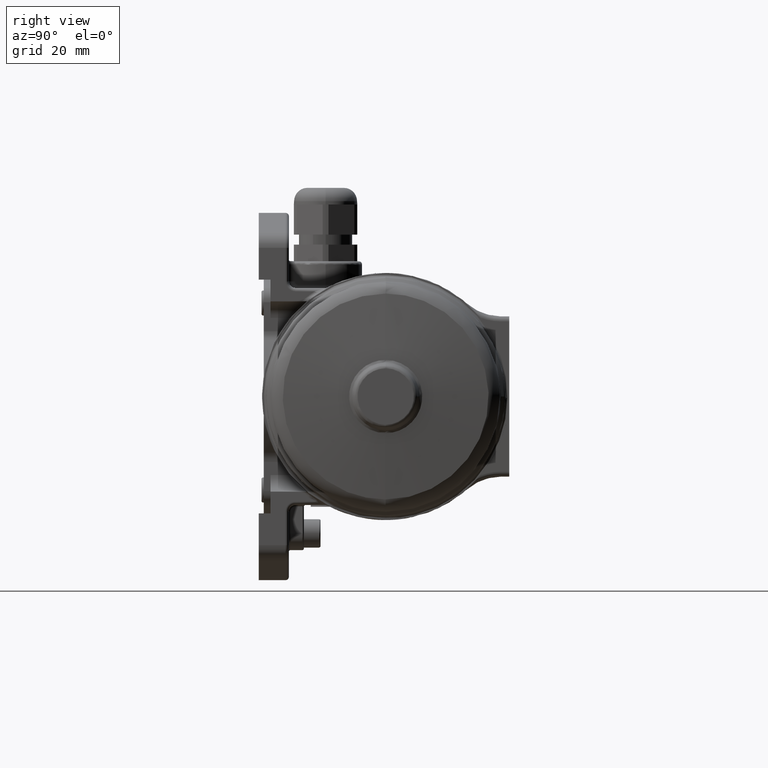
[diagram: clean part render]
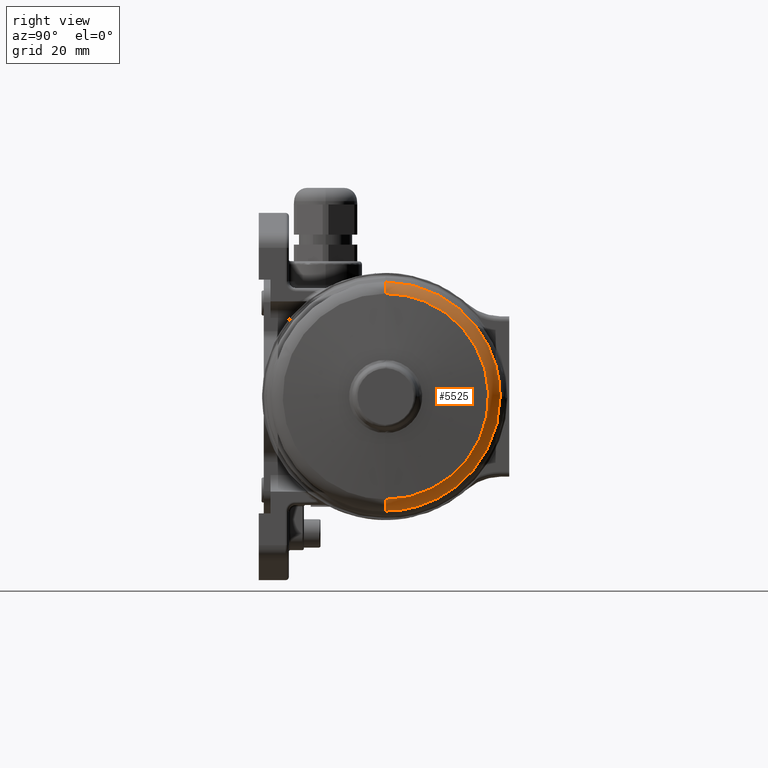
[diagram: same view with one face highlighted and labeled with its STEP entity id]
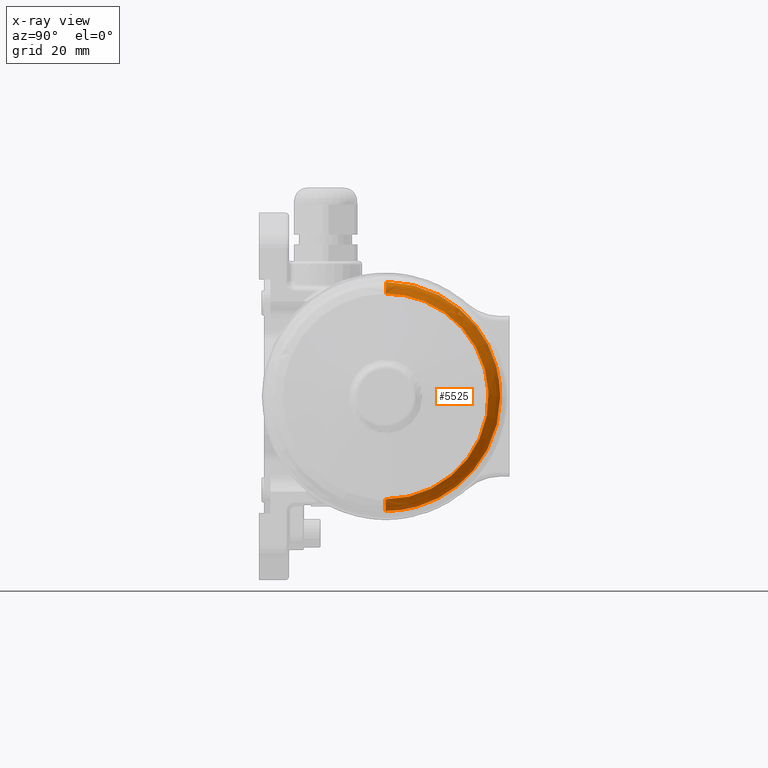
[diagram: x-ray of the same camera — body ghosted, the highlighted face saturated]
A machine part, right view. The second image highlights one B-rep face of the part: STEP entity #5525.
The next image is the same camera in x-ray: the body ghosted, the highlighted face saturated — about 0% of this face is hidden behind the body in this view.
In plain terms, the highlighted face is a freeform B-spline surface patch.
Its self-contained STEP definition (entity closure, byte-faithful):
#1525 = CARTESIAN_POINT ( 'NONE',  ( 76.43075740382001000, 34.30000024409823600, -7.554320217214872700E-012 ) ) ;
#1855 = CIRCLE ( 'NONE', #1875, 34.30000000000330100 ) ;
#1870 = CARTESIAN_POINT ( 'NONE',  ( 76.43075740382009500, -0.01803685388854630100, -34.29999525761084600 ) ) ;
#1875 = AXIS2_PLACEMENT_3D ( 'NONE', #1936, #1935, #1934 ) ;
#1878 = CARTESIAN_POINT ( 'NONE',  ( 76.43075740382009500, -7.515426538180559100E-015, -34.29999999390215500 ) ) ;
#1904 = CARTESIAN_POINT ( 'NONE',  ( 76.43075740381995300, 27.27219155744948900, -20.92264986176789400 ) ) ;
#1905 = CARTESIAN_POINT ( 'NONE',  ( 76.43075740381993900, 29.76662384650970600, -17.18946812338165100 ) ) ;
#1906 = CARTESIAN_POINT ( 'NONE',  ( 76.43075740381992500, 30.82997054284664200, -15.20008637842437000 ) ) ;
#1907 = CARTESIAN_POINT ( 'NONE',  ( 76.43075740381995300, 32.54816538743298100, -11.05199708182483500 ) ) ;
#1908 = CARTESIAN_POINT ( 'NONE',  ( 76.43075740381995300, 33.20297104992893400, -8.893392099864705400 ) ) ;
#1909 = CARTESIAN_POINT ( 'NONE',  ( 76.43075740381993900, 34.07889918573866300, -4.489803990444897000 ) ) ;
#1910 = CARTESIAN_POINT ( 'NONE',  ( 76.43075740381995300, 34.30000000000317300, -2.244929750378994400 ) ) ;
#1914 = CARTESIAN_POINT ( 'NONE',  ( 76.43075740382001000, 34.30000024409823600, -7.554320217214872700E-012 ) ) ;
#1915 = B_SPLINE_CURVE_WITH_KNOTS ( 'NONE', 3,
 ( #1914, #1910, #1909, #1908, #1907, #1906, #1905, #1904, #1972, #1971, #1970, #1969, #1968, #1967, #1966, #1965, #1964, #1963 ),
 .UNSPECIFIED., .F., .F.,
 ( 4, 2, 2, 2, 2, 2, 2, 2, 4 ),
 ( 0.4999162934352366900, 0.5624267567558320900, 0.6249372200764273800, 0.6874476833970228900, 0.7499581467176182900, 0.8124686100382136900, 0.8749790733588092000, 0.9374895366794046000, 1.000000000000000000 ),
 .UNSPECIFIED. ) ;
#1934 = DIRECTION ( 'NONE',  ( 0.0000000000000000000, -1.179611963664229600E-016, -1.000000000000000000 ) ) ;
#1935 = DIRECTION ( 'NONE',  ( -1.000000000000000000, -5.766495800001249700E-022, -1.037842000000000100E-018 ) ) ;
#1936 = CARTESIAN_POINT ( 'NONE',  ( 76.43075740382009500, 8.944842204785980400E-020, 7.429153428379859200E-020 ) ) ;
#1963 = CARTESIAN_POINT ( 'NONE',  ( 76.43075740382009500, -7.515426538180559100E-015, -34.29999999390215500 ) ) ;
#1964 = CARTESIAN_POINT ( 'NONE',  ( 76.43075740381995300, 2.244929750377816700, -34.30000000000325100 ) ) ;
#1965 = CARTESIAN_POINT ( 'NONE',  ( 76.43075740381992500, 4.489803990443721900, -34.07889918573881300 ) ) ;
#1966 = CARTESIAN_POINT ( 'NONE',  ( 76.43075740381993900, 8.893392099863564900, -33.20297104992924600 ) ) ;
#1967 = CARTESIAN_POINT ( 'NONE',  ( 76.43075740381995300, 11.05199708182372300, -32.54816538743334300 ) ) ;
#1968 = CARTESIAN_POINT ( 'NONE',  ( 76.43075740381992500, 15.20008637842332200, -30.82997054284716800 ) ) ;
#1969 = CARTESIAN_POINT ( 'NONE',  ( 76.43075740381996800, 17.18946812338059600, -29.76662384651031700 ) ) ;
#1970 = CARTESIAN_POINT ( 'NONE',  ( 76.43075740381999600, 20.92264986176692800, -27.27219155745021700 ) ) ;
#1971 = CARTESIAN_POINT ( 'NONE',  ( 76.43075740381992500, 22.66635754492081000, -25.84116764448088000 ) ) ;
#1972 = CARTESIAN_POINT ( 'NONE',  ( 76.43075740381993900, 25.84116764448010500, -22.66635754492169500 ) ) ;
#5330 = VERTEX_POINT ( 'NONE', #12017 ) ;
#5394 = EDGE_CURVE ( 'NONE', #5330, #13469, #14842, .T. ) ;
#5413 = VERTEX_POINT ( 'NONE', #14920 ) ;
#5426 = VERTEX_POINT ( 'NONE', #14965 ) ;
#5457 = ORIENTED_EDGE ( 'NONE', *, *, #5461, .T. ) ;
#5461 = EDGE_CURVE ( 'NONE', #5426, #13584, #15605, .T. ) ;
#5462 = EDGE_CURVE ( 'NONE', #5330, #5413, #15655, .T. ) ;
#5471 = EDGE_CURVE ( 'NONE', #5490, #5413, #15695, .T. ) ;
#5476 = EDGE_CURVE ( 'NONE', #5426, #5490, #15724, .T. ) ;
#5490 = VERTEX_POINT ( 'NONE', #16072 ) ;
#5525 = ADVANCED_FACE ( 'NONE', ( #16141 ), #16227, .F. ) ;
#5527 = EDGE_LOOP ( 'NONE', ( #5528, #5532, #5533, #5531, #5536, #5529, #5457 ) ) ;
#5528 = ORIENTED_EDGE ( 'NONE', *, *, #13590, .F. ) ;
#5529 = ORIENTED_EDGE ( 'NONE', *, *, #5476, .F. ) ;
#5531 = ORIENTED_EDGE ( 'NONE', *, *, #5462, .T. ) ;
#5532 = ORIENTED_EDGE ( 'NONE', *, *, #13591, .F. ) ;
#5533 = ORIENTED_EDGE ( 'NONE', *, *, #5394, .F. ) ;
#5536 = ORIENTED_EDGE ( 'NONE', *, *, #5471, .F. ) ;
#12017 = CARTESIAN_POINT ( 'NONE',  ( 76.43075740382009500, 0.01803685388854980200, 34.29999525761084600 ) ) ;
#13469 = VERTEX_POINT ( 'NONE', #1525 ) ;
#13584 = VERTEX_POINT ( 'NONE', #1870 ) ;
#13585 = VERTEX_POINT ( 'NONE', #1878 ) ;
#13590 = EDGE_CURVE ( 'NONE', #13585, #13584, #1855, .T. ) ;
#13591 = EDGE_CURVE ( 'NONE', #13469, #13585, #1915, .T. ) ;
#14816 = CARTESIAN_POINT ( 'NONE',  ( 76.43075740382001000, 34.30000024409823600, -7.554320217214872700E-012 ) ) ;
#14817 = CARTESIAN_POINT ( 'NONE',  ( 76.43075740381993900, 34.30000000000331500, 2.244178214763529400 ) ) ;
#14818 = CARTESIAN_POINT ( 'NONE',  ( 76.43075740381995300, 34.07904766693912500, 4.488301012001903300 ) ) ;
#14819 = CARTESIAN_POINT ( 'NONE',  ( 76.43075740381992500, 33.20370212732529300, 8.890472478991243900 ) ) ;
#14820 = CARTESIAN_POINT ( 'NONE',  ( 76.43075740381998200, 32.54933053647626200, 11.04841244193302400 ) ) ;
#14821 = CARTESIAN_POINT ( 'NONE',  ( 76.43075740381998200, 30.83225604885636900, 15.19533885102950100 ) ) ;
#14822 = CARTESIAN_POINT ( 'NONE',  ( 76.43075740381995300, 29.76959555336179600, 17.18422289337254200 ) ) ;
#14823 = CARTESIAN_POINT ( 'NONE',  ( 76.43075740381995300, 27.27673429622249700, 20.91664652837846500 ) ) ;
#14824 = CARTESIAN_POINT ( 'NONE',  ( 76.43075740381996800, 25.84659509305978300, 22.66009395292228100 ) ) ;
#14825 = CARTESIAN_POINT ( 'NONE',  ( 76.43075740381995300, 22.67368240179041500, 25.83467557765312600 ) ) ;
#14826 = CARTESIAN_POINT ( 'NONE',  ( 76.43075740381996800, 20.93098726529204300, 27.26573138501934000 ) ) ;
#14827 = CARTESIAN_POINT ( 'NONE',  ( 76.43075740381996800, 17.19987503188610100, 29.76055501410126100 ) ) ;
#14828 = CARTESIAN_POINT ( 'NONE',  ( 76.43075740381993900, 15.21155007071393200, 30.82426122887634200 ) ) ;
#14829 = CARTESIAN_POINT ( 'NONE',  ( 76.43075740381993900, 11.06552716855631900, 32.54351616438809500 ) ) ;
#14830 = CARTESIAN_POINT ( 'NONE',  ( 76.43075740381995300, 8.907931609071473700, 33.19902243000466800 ) ) ;
#14839 = CARTESIAN_POINT ( 'NONE',  ( 76.43075740381992500, 4.506221056263629300, 34.07668275598335600 ) ) ;
#14840 = CARTESIAN_POINT ( 'NONE',  ( 76.43075740381995300, 2.262214758368067600, 34.29881514348372900 ) ) ;
#14841 = CARTESIAN_POINT ( 'NONE',  ( 76.43075740382009500, 0.01803685388854980200, 34.29999525761084600 ) ) ;
#14842 = B_SPLINE_CURVE_WITH_KNOTS ( 'NONE', 3,
 ( #14841, #14840, #14839, #14830, #14829, #14828, #14827, #14826, #14825, #14824, #14823, #14822, #14821, #14820, #14819, #14818, #14817, #14816 ),
 .UNSPECIFIED., .F., .F.,
 ( 4, 2, 2, 2, 2, 2, 2, 2, 4 ),
 ( 0.0000000000000000000, 0.06248953667940461400, 0.1249790733588092300, 0.1874686100382137700, 0.2499581467176183500, 0.3124476833970228900, 0.3749372200764274900, 0.4374267567558320400, 0.4999162934352366900 ),
 .UNSPECIFIED. ) ;
#14920 = CARTESIAN_POINT ( 'NONE',  ( 80.21629720906608400, 0.01621276101738970000, 30.83118760318850300 ) ) ;
#14965 = CARTESIAN_POINT ( 'NONE',  ( 80.21629720918949100, -0.01621276101662820100, -30.83118760177880100 ) ) ;
#15336 = CARTESIAN_POINT ( 'NONE',  ( 80.21629720906659600, 31.02983431266405000, -0.01614144394570060000 ) ) ;
#15352 = CARTESIAN_POINT ( 'NONE',  ( 80.21629720906659600, 25.68546071184199800, 17.14295015924729900 ) ) ;
#15353 = CARTESIAN_POINT ( 'NONE',  ( 80.21629720906659600, 27.24207039899755100, 14.54258287021332000 ) ) ;
#15354 = CARTESIAN_POINT ( 'NONE',  ( 80.21629720906659600, 28.96652833144240100, 10.89234608234363900 ) ) ;
#15355 = CARTESIAN_POINT ( 'NONE',  ( 80.21629720906659600, 30.43724570973289900, 6.036979373995180300 ) ) ;
#15602 = CARTESIAN_POINT ( 'NONE',  ( 80.17558706228931000, -0.01645745176789514800, -31.29650664576660200 ) ) ;
#15603 = CARTESIAN_POINT ( 'NONE',  ( 80.21629720918949100, -0.01621276101662820100, -30.83118760177880100 ) ) ;
#15605 = B_SPLINE_CURVE_WITH_KNOTS ( 'NONE', 3,
 ( #15603, #15602, #15661, #15660, #15659, #15658, #15657 ),
 .UNSPECIFIED., .F., .F.,
 ( 4, 1, 1, 1, 4 ),
 ( 0.0000000000000000000, 1.401289650940730000, 2.802579301881455100, 4.203868952822174900, 5.605158603762900400 ),
 .UNSPECIFIED. ) ;
#15647 = CARTESIAN_POINT ( 'NONE',  ( 80.21629720906608400, 0.01621276101738970000, 30.83118760318850300 ) ) ;
#15648 = CARTESIAN_POINT ( 'NONE',  ( 80.17558706228931000, 0.01645745176791594800, 31.29650664576660200 ) ) ;
#15649 = CARTESIAN_POINT ( 'NONE',  ( 79.91789415065071000, 0.01694354276061995100, 32.22088729703574500 ) ) ;
#15650 = CARTESIAN_POINT ( 'NONE',  ( 79.05723255256009500, 0.01754585954526950000, 33.36629009205675100 ) ) ;
#15651 = CARTESIAN_POINT ( 'NONE',  ( 77.84117660238170800, 0.01794422585208825200, 34.12384806303674600 ) ) ;
#15652 = CARTESIAN_POINT ( 'NONE',  ( 76.89785395413369400, 0.01803685388854980200, 34.29999525761084600 ) ) ;
#15653 = CARTESIAN_POINT ( 'NONE',  ( 76.43075740382009500, 0.01803685388854980200, 34.29999525761084600 ) ) ;
#15655 = B_SPLINE_CURVE_WITH_KNOTS ( 'NONE', 3,
 ( #15653, #15652, #15651, #15650, #15649, #15648, #15647 ),
 .UNSPECIFIED., .F., .F.,
 ( 4, 1, 1, 1, 4 ),
 ( 0.0000000000000000000, 1.401289650940726000, 2.802579301881445300, 4.203868952822170400, 5.605158603762900400 ),
 .UNSPECIFIED. ) ;
#15657 = CARTESIAN_POINT ( 'NONE',  ( 76.43075740382009500, -0.01803685388854630100, -34.29999525761084600 ) ) ;
#15658 = CARTESIAN_POINT ( 'NONE',  ( 76.89785395413369400, -0.01803685388853414800, -34.29999525761084600 ) ) ;
#15659 = CARTESIAN_POINT ( 'NONE',  ( 77.84117660238170800, -0.01794422585206914900, -34.12384806303674600 ) ) ;
#15660 = CARTESIAN_POINT ( 'NONE',  ( 79.05723255256009500, -0.01754585954525565000, -33.36629009205680100 ) ) ;
#15661 = CARTESIAN_POINT ( 'NONE',  ( 79.91789415065071000, -0.01694354276058870200, -32.22088729703569500 ) ) ;
#15663 = CARTESIAN_POINT ( 'NONE',  ( 80.21629720966171800, 8.008371734502393500, 29.84122849395561500 ) ) ;
#15664 = CARTESIAN_POINT ( 'NONE',  ( 80.21629720966170400, 9.948065350124704100, 29.25181928797067200 ) ) ;
#15665 = CARTESIAN_POINT ( 'NONE',  ( 80.21629720966170400, 13.67531741799465700, 27.70593130330645700 ) ) ;
#15666 = CARTESIAN_POINT ( 'NONE',  ( 80.21629720966170400, 15.46278376822514200, 26.74949072419058600 ) ) ;
#15667 = CARTESIAN_POINT ( 'NONE',  ( 80.21629720966171800, 18.81690367562681500, 24.50626597277984300 ) ) ;
#15668 = CARTESIAN_POINT ( 'NONE',  ( 80.21629720966170400, 20.38347435103856900, 23.21953723154269900 ) ) ;
#15669 = CARTESIAN_POINT ( 'NONE',  ( 80.21629720966171800, 23.23560815952518200, 20.36515281856366900 ) ) ;
#15670 = CARTESIAN_POINT ( 'NONE',  ( 80.21629720966170400, 24.52110081513508900, 18.79756767990014100 ) ) ;
#15671 = CARTESIAN_POINT ( 'NONE',  ( 80.21629720966171800, 26.76167919375048900, 15.44167939691883100 ) ) ;
#15672 = CARTESIAN_POINT ( 'NONE',  ( 80.21629720966170400, 27.71670955109126300, 13.65345917805782100 ) ) ;
#15673 = CARTESIAN_POINT ( 'NONE',  ( 80.21629720966170400, 29.25965705934619600, 9.924988898527640700 ) ) ;
#15674 = CARTESIAN_POINT ( 'NONE',  ( 80.21629720966170400, 29.84753608335740800, 7.984830969978165900 ) ) ;
#15675 = CARTESIAN_POINT ( 'NONE',  ( 80.21629720966171800, 30.63357789842384100, 4.027013907058624800 ) ) ;
#15676 = CARTESIAN_POINT ( 'NONE',  ( 80.21629720966171800, 30.83172126604446800, 2.009452572066862300 ) ) ;
#15677 = CARTESIAN_POINT ( 'NONE',  ( 80.21629720966171800, 30.83066032089693900, -2.025665333641152100 ) ) ;
#15678 = CARTESIAN_POINT ( 'NONE',  ( 80.21629720966171800, 30.63145603434521300, -4.043122194841697800 ) ) ;
#15679 = CARTESIAN_POINT ( 'NONE',  ( 80.21629720966173200, 29.84333308690667900, -8.000525365898552000 ) ) ;
#15680 = CARTESIAN_POINT ( 'NONE',  ( 80.21629720966173200, 29.25443390088017300, -9.940373886603989500 ) ) ;
#15681 = CARTESIAN_POINT ( 'NONE',  ( 80.21629720966171800, 27.70952596824045200, -13.66803228273378300 ) ) ;
#15682 = CARTESIAN_POINT ( 'NONE',  ( 80.21629720966171800, 26.75355539697315900, -15.45575004610042700 ) ) ;
#15683 = CARTESIAN_POINT ( 'NONE',  ( 80.21629720966173200, 24.51121261483226700, -18.81045964395694300 ) ) ;
#15684 = CARTESIAN_POINT ( 'NONE',  ( 80.21629720966173200, 23.22489581322254900, -20.37736858211586400 ) ) ;
#15685 = CARTESIAN_POINT ( 'NONE',  ( 80.21629720966174700, 20.37126140448342300, -23.23025278934022400 ) ) ;
#15686 = CARTESIAN_POINT ( 'NONE',  ( 80.21629720966174700, 18.80401431189945400, -24.51615756239803500 ) ) ;
#15687 = CARTESIAN_POINT ( 'NONE',  ( 80.21629720966171800, 15.44871525550279600, -26.75761822025346600 ) ) ;
#15688 = CARTESIAN_POINT ( 'NONE',  ( 80.21629720966171800, 13.66074620258684300, -27.71311871758488000 ) ) ;
#15689 = CARTESIAN_POINT ( 'NONE',  ( 80.21629720966176100, 9.932681735894282900, -29.25704649139891700 ) ) ;
#15690 = CARTESIAN_POINT ( 'NONE',  ( 80.21629720966170400, 7.992678444209561300, -29.84543561675574400 ) ) ;
#15691 = CARTESIAN_POINT ( 'NONE',  ( 80.21629720966171800, 4.035068190424411200, -30.63251802521415700 ) ) ;
#15692 = CARTESIAN_POINT ( 'NONE',  ( 80.21629720966170400, 2.017559022591957500, -30.83119185916760300 ) ) ;
#15693 = CARTESIAN_POINT ( 'NONE',  ( 80.21629720906580000, -5.814960439109021300E-012, -30.83119186049519900 ) ) ;
#15695 = B_SPLINE_CURVE_WITH_KNOTS ( 'NONE', 3,
 ( #15693, #15692, #15691, #15690, #15689, #15688, #15687, #15686, #15685, #15684, #15683, #15682, #15681, #15680, #15679, #15678, #15677, #15676, #15675, #15674, #15673, #15672, #15671, #15670, #15669, #15668, #15667, #15666, #15665, #15664, #15663, #15728, #15727, #15726 ),
 .UNSPECIFIED., .F., .F.,
 ( 4, 2, 2, 2, 2, 2, 2, 2, 2, 2, 2, 2, 2, 2, 2, 2, 4 ),
 ( 0.0000000000000000000, 0.06250000000000008300, 0.1250000000000001400, 0.1875000000000001900, 0.2500000000000002200, 0.3125000000000002200, 0.3750000000000002800, 0.4375000000000002800, 0.5000000000000003300, 0.5625000000000003300, 0.6250000000000002200, 0.6875000000000002200, 0.7500000000000002200, 0.8125000000000002200, 0.8750000000000001100, 0.9375000000000001100, 1.000000000000000000 ),
 .UNSPECIFIED. ) ;
#15705 = DIRECTION ( 'NONE',  ( 1.000000000000000000, -2.250607748826409800E-016, 2.250608388436215200E-016 ) ) ;
#15722 = CARTESIAN_POINT ( 'NONE',  ( 80.21629720906530300, -3.469357261404724700E-015, 7.429153428420779200E-020 ) ) ;
#15724 = CIRCLE ( 'NONE', #15767, 30.83119186598505100 ) ;
#15726 = CARTESIAN_POINT ( 'NONE',  ( 80.21629720906608400, 0.01621276101738970000, 30.83118760318850300 ) ) ;
#15727 = CARTESIAN_POINT ( 'NONE',  ( 80.21629720966170400, 2.033771504653746600, 30.83012665126926400 ) ) ;
#15728 = CARTESIAN_POINT ( 'NONE',  ( 80.21629720966170400, 4.051175919753416300, 30.63039192589045700 ) ) ;
#15766 = DIRECTION ( 'NONE',  ( 0.0000000000000000000, 1.179611963664230100E-016, 1.000000000000000000 ) ) ;
#15767 = AXIS2_PLACEMENT_3D ( 'NONE', #15722, #15705, #15766 ) ;
#15773 = CARTESIAN_POINT ( 'NONE',  ( 80.21629720906659600, 23.88130433760764900, 19.57807446992229900 ) ) ;
#15796 = CARTESIAN_POINT ( 'NONE',  ( 80.21629720906659600, 17.25313807424964800, 25.79176778924889700 ) ) ;
#15797 = CARTESIAN_POINT ( 'NONE',  ( 80.21629720906659600, 21.17188518327694900, 22.57103325955035100 ) ) ;
#16068 = CARTESIAN_POINT ( 'NONE',  ( 80.21629720906659600, 0.01621276101738970000, 30.83118760318330200 ) ) ;
#16072 = CARTESIAN_POINT ( 'NONE',  ( 80.21629720906580000, -5.814960439109021300E-012, -30.83119186049519900 ) ) ;
#16103 = CARTESIAN_POINT ( 'NONE',  ( 80.21629720906659600, 12.78041950411505900, 28.18440506354179900 ) ) ;
#16118 = CARTESIAN_POINT ( 'NONE',  ( 80.21629720906659600, 8.979908231644769100, 29.54622793671395100 ) ) ;
#16122 = CARTESIAN_POINT ( 'NONE',  ( 80.21629720906659600, 3.043202804694269800, 30.73045548907444800 ) ) ;
#16123 = CARTESIAN_POINT ( 'NONE',  ( 80.21629720906659600, 1.024755875977744000, 30.83065725486489900 ) ) ;
#16130 = CARTESIAN_POINT ( 'NONE',  ( 80.21629720906659600, 6.040373573423100800, 30.28424718223050100 ) ) ;
#16141 = FACE_OUTER_BOUND ( 'NONE', #5527, .T. ) ;
#16184 = CARTESIAN_POINT ( 'NONE',  ( 76.43075740382009500, 0.01803685388854980200, 34.29999525761084600 ) ) ;
#16185 = CARTESIAN_POINT ( 'NONE',  ( 76.43075740382009500, 1.140050851710174000, 34.29940523996254600 ) ) ;
#16186 = CARTESIAN_POINT ( 'NONE',  ( 76.43075740382009500, 3.385592637961954800, 34.18792980360725400 ) ) ;
#16187 = CARTESIAN_POINT ( 'NONE',  ( 76.43075740382009500, 6.719974189421710000, 33.69151873421739700 ) ) ;
#16188 = CARTESIAN_POINT ( 'NONE',  ( 76.43075740382009500, 9.990235008897089500, 32.87046516511555400 ) ) ;
#16189 = CARTESIAN_POINT ( 'NONE',  ( 76.43075740382009500, 14.21834066282166000, 31.35542400962375400 ) ) ;
#16190 = CARTESIAN_POINT ( 'NONE',  ( 76.43075740382009500, 19.19428345551525100, 28.69359183443515000 ) ) ;
#16191 = CARTESIAN_POINT ( 'NONE',  ( 76.43075740382009500, 23.55392762444550000, 25.11049343042565200 ) ) ;
#16192 = CARTESIAN_POINT ( 'NONE',  ( 76.43075740382009500, 26.56818271382220300, 21.78079774656984900 ) ) ;
#16193 = CARTESIAN_POINT ( 'NONE',  ( 76.43075740382009500, 28.57532417968764800, 19.07169833130045000 ) ) ;
#16194 = CARTESIAN_POINT ( 'NONE',  ( 76.43075740382009500, 30.30706755508310100, 16.17876449982185200 ) ) ;
#16195 = CARTESIAN_POINT ( 'NONE',  ( 76.43075740382009500, 32.22554373141765200, 12.11784066761245900 ) ) ;
#16196 = CARTESIAN_POINT ( 'NONE',  ( 76.43075740382009500, 33.86173108008275500, 6.716198109635899800 ) ) ;
#16197 = CARTESIAN_POINT ( 'NONE',  ( 76.43075740382009500, 34.52099164869459700, -0.01795751295454305100 ) ) ;
#16198 = CARTESIAN_POINT ( 'NONE',  ( 76.43075740382009500, 33.85427387080395100, -6.752589181149099700 ) ) ;
#16199 = CARTESIAN_POINT ( 'NONE',  ( 76.43075740382009500, 31.88638277368190200, -13.22741016699503900 ) ) ;
#16200 = CARTESIAN_POINT ( 'NONE',  ( 76.43075740382009500, 28.69316210598274700, -19.19399292343484800 ) ) ;
#16201 = CARTESIAN_POINT ( 'NONE',  ( 76.43075740382009500, 24.39726692062924600, -24.42293886177749900 ) ) ;
#16202 = CARTESIAN_POINT ( 'NONE',  ( 76.43075740382009500, 19.16380176926350000, -28.71333096756855200 ) ) ;
#16203 = CARTESIAN_POINT ( 'NONE',  ( 76.43075740382009500, 13.19388157391017900, -31.90028425560414900 ) ) ;
#16204 = CARTESIAN_POINT ( 'NONE',  ( 76.43075740382009500, 6.716928145997579600, -33.86132794339090400 ) ) ;
#16205 = CARTESIAN_POINT ( 'NONE',  ( 76.43075740382009500, -0.01815312293878470300, -34.52109966402385100 ) ) ;
#16206 = CARTESIAN_POINT ( 'NONE',  ( 76.43075740382009500, -6.752536777573681100, -33.85424494617885200 ) ) ;
#16207 = CARTESIAN_POINT ( 'NONE',  ( 76.43075740382009500, -13.22742417131240000, -31.88639045685309600 ) ) ;
#16208 = CARTESIAN_POINT ( 'NONE',  ( 76.43075740382009500, -19.19398930974085000, -28.69316029792315000 ) ) ;
#16209 = CARTESIAN_POINT ( 'NONE',  ( 76.43075740382009500, -24.42293931223625200, -24.39726646969649700 ) ) ;
#16210 = CARTESIAN_POINT ( 'NONE',  ( 76.43075740382009500, -28.71333277942770200, -19.16380538105400100 ) ) ;
#16211 = CARTESIAN_POINT ( 'NONE',  ( 76.43075740382009500, -31.90027655770869700, -13.19386757768102000 ) ) ;
#16212 = CARTESIAN_POINT ( 'NONE',  ( 76.43075740382009500, -33.86135692311344800, -6.716980519123679500 ) ) ;
#16213 = CARTESIAN_POINT ( 'NONE',  ( 76.43075740382009500, -34.52099144302910400, 0.01834861921395640100 ) ) ;
#16214 = CARTESIAN_POINT ( 'NONE',  ( 76.43075740382009500, -33.85464885043534600, 6.751807165599140100 ) ) ;
#16215 = CARTESIAN_POINT ( 'NONE',  ( 76.43075740382009500, -32.21278143732585200, 12.15172593923306000 ) ) ;
#16216 = CARTESIAN_POINT ( 'NONE',  ( 76.43075740382009500, -30.29003540190354800, 16.21062984218990300 ) ) ;
#16217 = CARTESIAN_POINT ( 'NONE',  ( 76.43075740382009500, -28.55525045260715100, 19.10174077939619900 ) ) ;
#16218 = CARTESIAN_POINT ( 'NONE',  ( 76.43075740382009500, -26.54526090591000200, 21.80872776273730200 ) ) ;
#16219 = CARTESIAN_POINT ( 'NONE',  ( 76.43075740382009500, -23.52750560448205200, 25.13525147851385100 ) ) ;
#16220 = CARTESIAN_POINT ( 'NONE',  ( 76.43075740382009500, -19.16409546102329700, 28.71376281319835000 ) ) ;
#16221 = CARTESIAN_POINT ( 'NONE',  ( 76.43075740382009500, -14.18535594088734100, 31.37036026024675600 ) ) ;
#16222 = CARTESIAN_POINT ( 'NONE',  ( 76.43075740382009500, -9.955659239178020300, 32.88095383071235000 ) ) ;
#16223 = CARTESIAN_POINT ( 'NONE',  ( 76.43075740382009500, -6.684536716874959900, 33.69856757497810000 ) ) ;
#16224 = CARTESIAN_POINT ( 'NONE',  ( 76.43075740382009500, -3.349634928283959900, 34.19147156256684600 ) ) ;
#16225 = CARTESIAN_POINT ( 'NONE',  ( 76.43075740382009500, -1.103977143933071900, 34.30058527525920200 ) ) ;
#16226 = CARTESIAN_POINT ( 'NONE',  ( 76.43075740382009500, 0.01803685388854980200, 34.29999525761084600 ) ) ;
#16227 = B_SPLINE_SURFACE_WITH_KNOTS ( 'NONE', 3, 3, ( 
 ( #16226, #16225, #16224, #16223, #16222, #16221, #16220, #16219, #16218, #16217, #16216, #16215, #16214, #16213, #16212, #16211, #16210, #16209, #16208, #16207, #16206, #16205, #16204, #16203, #16202, #16201, #16200, #16199, #16198, #16197, #16196, #16195, #16194, #16193, #16192, #16191, #16190, #16189, #16188, #16187, #16186, #16185, #16184 ),
 ( #16275, #16274, #16273, #16272, #16271, #16270, #16269, #16268, #16267, #16266, #16265, #16264, #16263, #16262, #16261, #16260, #16259, #16258, #16257, #16256, #16255, #16254, #16253, #16252, #16251, #16250, #16249, #16248, #16247, #16246, #16245, #16244, #16243, #16242, #16241, #16240, #16239, #16238, #16237, #16236, #16235, #16234, #16233 ),
 ( #16232, #16231, #16230, #16229, #16228, #16324, #16323, #16322, #16321, #16320, #16319, #16318, #16317, #16316, #16315, #16314, #16313, #16312, #16311, #16310, #16309, #16308, #16307, #16306, #16305, #16304, #16303, #16302, #16301, #16300, #16299, #16298, #16297, #16296, #16295, #16294, #16293, #16292, #16291, #16290, #16289, #16288, #16287 ),
 ( #16286, #16285, #16284, #16283, #16282, #16281, #16280, #16279, #16278, #16277, #16276, #16373, #16372, #16371, #16370, #16369, #16368, #16367, #16366, #16365, #16364, #16363, #16362, #16361, #16360, #16359, #16358, #16357, #16356, #16355, #16354, #16353, #16352, #16351, #16350, #16349, #16348, #16347, #16346, #16345, #16344, #16343, #16342 ),
 ( #16341, #16340, #16339, #16338, #16337, #16336, #16335, #16334, #16333, #16332, #16331, #16330, #16329, #16328, #16327, #16326, #16325, #16422, #16421, #16420, #16419, #16418, #16417, #16416, #16415, #16414, #16413, #16412, #16411, #16410, #16409, #16408, #16407, #16406, #16405, #16404, #16403, #16402, #16401, #16400, #16399, #16398, #16397 ),
 ( #16396, #16395, #16394, #16393, #16392, #16391, #16390, #16389, #16388, #16387, #16386, #16385, #16384, #16383, #16382, #16381, #16380, #16379, #16378, #16377, #16376, #16375, #16374, #16471, #16470, #16469, #16468, #16467, #16466, #16465, #16464, #16463, #16462, #16461, #16460, #16459, #16458, #16457, #16456, #16455, #16454, #16453, #16452 ),
 ( #16451, #16450, #16449, #16448, #16447, #16446, #16445, #16444, #16443, #16442, #16441, #16440, #16439, #16438, #16437, #16436, #16435, #16434, #16433, #16432, #16431, #16430, #16429, #16428, #16427, #16426, #16425, #16424, #16423, #15336, #15355, #15354, #15353, #15352, #15773, #15797, #15796, #16103, #16118, #16130, #16122, #16123, #16068 ) ),
 .UNSPECIFIED., .F., .F., .F.,
 ( 4, 1, 1, 1, 4 ),
 ( 4, 1, 1, 1, 1, 1, 1, 1, 1, 1, 1, 1, 1, 1, 1, 1, 1, 1, 1, 1, 1, 1, 1, 1, 1, 1, 1, 1, 1, 1, 1, 1, 1, 1, 1, 1, 1, 1, 1, 1, 4 ),
 ( 0.0000000000000000000, 1.401289650940726000, 2.802579301881445300, 4.203868952822170400, 5.605158603762900400 ),
 ( 0.0000000000000000000, 3.231698556428625100, 6.463397112857250300, 9.695095669285880300, 12.92679422571450100, 19.38240589368595200, 25.83801756165739900, 29.06971611808605300, 32.30141467451465300, 35.53311323094325000, 38.76481178737190400, 45.22042345534340100, 51.67603512331479700, 58.13164679128630000, 64.58725845925769700, 71.04287012722920700, 77.49848179520060400, 83.95409346317210000, 90.40970513114349700, 96.86531679911499300, 103.3209284670864000, 109.7765401350580000, 116.2321518030292000, 122.6877634710007900, 129.1433751389721700, 135.5989868069436000, 142.0545984749150000, 148.5102101428865900, 154.9658218108579900, 161.4214334788295000, 167.8770451468010100, 171.1087437032294900, 174.3404422596580000, 177.5721408160870000, 180.8038393725154800, 187.2594510404870200, 193.7150627084585000, 196.9467612648869900, 200.1784598213155000, 203.4101583777440100, 206.6418569341730100 ),
 .UNSPECIFIED. ) ;
#16228 = CARTESIAN_POINT ( 'NONE',  ( 77.84117660238170800, -9.904532076274760400, 32.71209410555204800 ) ) ;
#16229 = CARTESIAN_POINT ( 'NONE',  ( 77.84117660238170800, -6.650208362574559800, 33.52550900470965400 ) ) ;
#16230 = CARTESIAN_POINT ( 'NONE',  ( 77.84117660238170800, -3.332432920206895000, 34.01588169006480200 ) ) ;
#16231 = CARTESIAN_POINT ( 'NONE',  ( 77.84117660238170800, -1.098307683184830200, 34.12443505065684900 ) ) ;
#16232 = CARTESIAN_POINT ( 'NONE',  ( 77.84117660238170800, 0.01794422585208825200, 34.12384806303674600 ) ) ;
#16233 = CARTESIAN_POINT ( 'NONE',  ( 76.89785395413369400, 0.01803685388854980200, 34.29999525761084600 ) ) ;
#16234 = CARTESIAN_POINT ( 'NONE',  ( 76.89785395413369400, 1.140050851710175900, 34.29940523996254600 ) ) ;
#16235 = CARTESIAN_POINT ( 'NONE',  ( 76.89785395413369400, 3.385592637961960100, 34.18792980360725400 ) ) ;
#16236 = CARTESIAN_POINT ( 'NONE',  ( 76.89785395413369400, 6.719974189421700200, 33.69151873421739700 ) ) ;
#16237 = CARTESIAN_POINT ( 'NONE',  ( 76.89785395413369400, 9.990235008897089500, 32.87046516511555400 ) ) ;
#16238 = CARTESIAN_POINT ( 'NONE',  ( 76.89785395413369400, 14.21834066282164100, 31.35542400962375400 ) ) ;
#16239 = CARTESIAN_POINT ( 'NONE',  ( 76.89785395413369400, 19.19428345551525100, 28.69359183443515000 ) ) ;
#16240 = CARTESIAN_POINT ( 'NONE',  ( 76.89785395413369400, 23.55392762444550000, 25.11049343042565200 ) ) ;
#16241 = CARTESIAN_POINT ( 'NONE',  ( 76.89785395413369400, 26.56818271382220300, 21.78079774656984900 ) ) ;
#16242 = CARTESIAN_POINT ( 'NONE',  ( 76.89785395413369400, 28.57532417968764800, 19.07169833130045000 ) ) ;
#16243 = CARTESIAN_POINT ( 'NONE',  ( 76.89785395413369400, 30.30706755508310100, 16.17876449982185200 ) ) ;
#16244 = CARTESIAN_POINT ( 'NONE',  ( 76.89785395413369400, 32.22554373141765200, 12.11784066761245900 ) ) ;
#16245 = CARTESIAN_POINT ( 'NONE',  ( 76.89785395413369400, 33.86173108008275500, 6.716198109635899800 ) ) ;
#16246 = CARTESIAN_POINT ( 'NONE',  ( 76.89785395413369400, 34.52099164869459700, -0.01795751295454305100 ) ) ;
#16247 = CARTESIAN_POINT ( 'NONE',  ( 76.89785395413369400, 33.85427387080395100, -6.752589181149099700 ) ) ;
#16248 = CARTESIAN_POINT ( 'NONE',  ( 76.89785395413369400, 31.88638277368190200, -13.22741016699503900 ) ) ;
#16249 = CARTESIAN_POINT ( 'NONE',  ( 76.89785395413369400, 28.69316210598274700, -19.19399292343484800 ) ) ;
#16250 = CARTESIAN_POINT ( 'NONE',  ( 76.89785395413369400, 24.39726692062924600, -24.42293886177749900 ) ) ;
#16251 = CARTESIAN_POINT ( 'NONE',  ( 76.89785395413369400, 19.16380176926350000, -28.71333096756855200 ) ) ;
#16252 = CARTESIAN_POINT ( 'NONE',  ( 76.89785395413369400, 13.19388157391017900, -31.90028425560414900 ) ) ;
#16253 = CARTESIAN_POINT ( 'NONE',  ( 76.89785395413369400, 6.716928145997579600, -33.86132794339090400 ) ) ;
#16254 = CARTESIAN_POINT ( 'NONE',  ( 76.89785395413369400, -0.01815312293878470300, -34.52109966402385100 ) ) ;
#16255 = CARTESIAN_POINT ( 'NONE',  ( 76.89785395413369400, -6.752536777573681100, -33.85424494617885200 ) ) ;
#16256 = CARTESIAN_POINT ( 'NONE',  ( 76.89785395413369400, -13.22742417131240000, -31.88639045685309600 ) ) ;
#16257 = CARTESIAN_POINT ( 'NONE',  ( 76.89785395413369400, -19.19398930974085000, -28.69316029792315000 ) ) ;
#16258 = CARTESIAN_POINT ( 'NONE',  ( 76.89785395413369400, -24.42293931223625200, -24.39726646969649700 ) ) ;
#16259 = CARTESIAN_POINT ( 'NONE',  ( 76.89785395413369400, -28.71333277942770200, -19.16380538105400100 ) ) ;
#16260 = CARTESIAN_POINT ( 'NONE',  ( 76.89785395413369400, -31.90027655770869700, -13.19386757768102000 ) ) ;
#16261 = CARTESIAN_POINT ( 'NONE',  ( 76.89785395413369400, -33.86135692311344800, -6.716980519123679500 ) ) ;
#16262 = CARTESIAN_POINT ( 'NONE',  ( 76.89785395413369400, -34.52099144302910400, 0.01834861921395640100 ) ) ;
#16263 = CARTESIAN_POINT ( 'NONE',  ( 76.89785395413369400, -33.85464885043534600, 6.751807165599140100 ) ) ;
#16264 = CARTESIAN_POINT ( 'NONE',  ( 76.89785395413369400, -32.21278143732585200, 12.15172593923306000 ) ) ;
#16265 = CARTESIAN_POINT ( 'NONE',  ( 76.89785395413369400, -30.29003540190354800, 16.21062984218990300 ) ) ;
#16266 = CARTESIAN_POINT ( 'NONE',  ( 76.89785395413369400, -28.55525045260715100, 19.10174077939619900 ) ) ;
#16267 = CARTESIAN_POINT ( 'NONE',  ( 76.89785395413369400, -26.54526090591000200, 21.80872776273730200 ) ) ;
#16268 = CARTESIAN_POINT ( 'NONE',  ( 76.89785395413369400, -23.52750560448205200, 25.13525147851385100 ) ) ;
#16269 = CARTESIAN_POINT ( 'NONE',  ( 76.89785395413369400, -19.16409546102329700, 28.71376281319835000 ) ) ;
#16270 = CARTESIAN_POINT ( 'NONE',  ( 76.89785395413369400, -14.18535594088734100, 31.37036026024675600 ) ) ;
#16271 = CARTESIAN_POINT ( 'NONE',  ( 76.89785395413369400, -9.955659239178020300, 32.88095383071235000 ) ) ;
#16272 = CARTESIAN_POINT ( 'NONE',  ( 76.89785395413369400, -6.684536716874959900, 33.69856757497810000 ) ) ;
#16273 = CARTESIAN_POINT ( 'NONE',  ( 76.89785395413369400, -3.349634928283959900, 34.19147156256684600 ) ) ;
#16274 = CARTESIAN_POINT ( 'NONE',  ( 76.89785395413369400, -1.103977143933070100, 34.30058527525920200 ) ) ;
#16275 = CARTESIAN_POINT ( 'NONE',  ( 76.89785395413369400, 0.01803685388854980200, 34.29999525761084600 ) ) ;
#16276 = CARTESIAN_POINT ( 'NONE',  ( 79.05723255256009500, -29.46548827566750000, 15.76934847445620000 ) ) ;
#16277 = CARTESIAN_POINT ( 'NONE',  ( 79.05723255256020800, -27.77792717162585100, 18.58175837406799900 ) ) ;
#16278 = CARTESIAN_POINT ( 'NONE',  ( 79.05723255256000900, -25.82265301507280200, 21.21505649213519700 ) ) ;
#16279 = CARTESIAN_POINT ( 'NONE',  ( 79.05723255256020800, -22.88704622976440100, 24.45102648178350100 ) ) ;
#16280 = CARTESIAN_POINT ( 'NONE',  ( 79.05723255256009500, -18.64241565346829800, 27.93212455174029800 ) ) ;
#16281 = CARTESIAN_POINT ( 'NONE',  ( 79.05723255256000900, -13.79920602985228100, 30.51640482380145200 ) ) ;
#16282 = CARTESIAN_POINT ( 'NONE',  ( 79.05723255256009500, -9.684648984269770700, 31.98587742590525100 ) ) ;
#16283 = CARTESIAN_POINT ( 'NONE',  ( 79.05723255256009500, -6.502572071836209700, 32.78123431063750100 ) ) ;
#16284 = CARTESIAN_POINT ( 'NONE',  ( 79.05723255256009500, -3.258452074998720200, 33.26072059959744800 ) ) ;
#16285 = CARTESIAN_POINT ( 'NONE',  ( 79.05723255256009500, -1.073924977622200000, 33.36686404840475700 ) ) ;
#16286 = CARTESIAN_POINT ( 'NONE',  ( 79.05723255256009500, 0.01754585954526950000, 33.36629009205675100 ) ) ;
#16287 = CARTESIAN_POINT ( 'NONE',  ( 77.84117660238170800, 0.01794422585208825200, 34.12384806303674600 ) ) ;
#16288 = CARTESIAN_POINT ( 'NONE',  ( 77.84117660238170800, 1.134196134889015900, 34.12326107541665700 ) ) ;
#16289 = CARTESIAN_POINT ( 'NONE',  ( 77.84117660238170800, 3.368205969518755200, 34.01235811976375300 ) ) ;
#16290 = CARTESIAN_POINT ( 'NONE',  ( 77.84117660238170800, 6.685463846426429800, 33.51849636318205200 ) ) ;
#16291 = CARTESIAN_POINT ( 'NONE',  ( 77.84117660238170800, 9.938930282562978400, 32.70165930436559900 ) ) ;
#16292 = CARTESIAN_POINT ( 'NONE',  ( 77.84117660238170800, 14.14532255303930000, 31.19439862368724900 ) ) ;
#16293 = CARTESIAN_POINT ( 'NONE',  ( 77.84117660238170800, 19.09571145405704900, 28.54623625418129500 ) ) ;
#16294 = CARTESIAN_POINT ( 'NONE',  ( 77.84117660238170800, 23.43296672514840000, 24.98153880699435100 ) ) ;
#16295 = CARTESIAN_POINT ( 'NONE',  ( 77.84117660238170800, 26.43174214539574900, 21.66894273347649900 ) ) ;
#16296 = CARTESIAN_POINT ( 'NONE',  ( 77.84117660238170800, 28.42857596148839900, 18.97375586420709900 ) ) ;
#16297 = CARTESIAN_POINT ( 'NONE',  ( 77.84117660238170800, 30.15142599054350100, 16.09567865806259900 ) ) ;
#16298 = CARTESIAN_POINT ( 'NONE',  ( 77.84117660238170800, 32.06004985658529400, 12.05560964915707900 ) ) ;
#16299 = CARTESIAN_POINT ( 'NONE',  ( 77.84117660238170800, 33.68783458568439900, 6.681707158650899800 ) ) ;
#16300 = CARTESIAN_POINT ( 'NONE',  ( 77.84117660238170800, 34.34370952993150200, -0.01786529237243475100 ) ) ;
#16301 = CARTESIAN_POINT ( 'NONE',  ( 77.84117660238170800, 33.68041567281014900, -6.717911344273690400 ) ) ;
#16302 = CARTESIAN_POINT ( 'NONE',  ( 77.84117660238170800, 31.72263065568555600, -13.15948096832032000 ) ) ;
#16303 = CARTESIAN_POINT ( 'NONE',  ( 77.84117660238170800, 28.54580873259395100, -19.09542241400050200 ) ) ;
#16304 = CARTESIAN_POINT ( 'NONE',  ( 77.84117660238170800, 24.27197506297540000, -24.29751516619255000 ) ) ;
#16305 = CARTESIAN_POINT ( 'NONE',  ( 77.84117660238170800, 19.06538630612200100, -28.56587401724455000 ) ) ;
#16306 = CARTESIAN_POINT ( 'NONE',  ( 77.84117660238170800, 13.12612456090384000, -31.73646074672205200 ) ) ;
#16307 = CARTESIAN_POINT ( 'NONE',  ( 77.84117660238170800, 6.682433445920039200, -33.68743351929595100 ) ) ;
#16308 = CARTESIAN_POINT ( 'NONE',  ( 77.84117660238170800, -0.01805989780408075200, -34.34381699054939900 ) ) ;
#16309 = CARTESIAN_POINT ( 'NONE',  ( 77.84117660238170800, -6.717859209816169600, -33.68038689672710000 ) ) ;
#16310 = CARTESIAN_POINT ( 'NONE',  ( 77.84117660238170800, -13.15949490071864100, -31.72263829939989700 ) ) ;
#16311 = CARTESIAN_POINT ( 'NONE',  ( 77.84117660238170800, -19.09541881886455200, -28.54580693381965200 ) ) ;
#16312 = CARTESIAN_POINT ( 'NONE',  ( 77.84117660238170800, -24.29751561433795000, -24.27197461435844900 ) ) ;
#16313 = CARTESIAN_POINT ( 'NONE',  ( 77.84117660238170800, -28.56587581979895100, -19.06538989936414900 ) ) ;
#16314 = CARTESIAN_POINT ( 'NONE',  ( 77.84117660238170800, -31.73645308835904500, -13.12611063655215900 ) ) ;
#16315 = CARTESIAN_POINT ( 'NONE',  ( 77.84117660238170800, -33.68746235019349900, -6.682485550084569700 ) ) ;
#16316 = CARTESIAN_POINT ( 'NONE',  ( 77.84117660238170800, -34.34370932532220200, 0.01825439011056825100 ) ) ;
#16317 = CARTESIAN_POINT ( 'NONE',  ( 77.84117660238170800, -33.68078872673834900, 6.717133344754759400 ) ) ;
#16318 = CARTESIAN_POINT ( 'NONE',  ( 77.84117660238170800, -32.04735310309440200, 12.08932090339116200 ) ) ;
#16319 = CARTESIAN_POINT ( 'NONE',  ( 77.84117660238170800, -30.13448130577255000, 16.12738035636535000 ) ) ;
#16320 = CARTESIAN_POINT ( 'NONE',  ( 77.84117660238170800, -28.40860532278105300, 19.00364402968820000 ) ) ;
#16321 = CARTESIAN_POINT ( 'NONE',  ( 77.84117660238170800, -26.40893805214004800, 21.69672931539689700 ) ) ;
#16322 = CARTESIAN_POINT ( 'NONE',  ( 77.84117660238170800, -23.40668039513639800, 25.00616971043775300 ) ) ;
#16323 = CARTESIAN_POINT ( 'NONE',  ( 77.84117660238170800, -19.06567848963144800, 28.56630364513660000 ) ) ;
#16324 = CARTESIAN_POINT ( 'NONE',  ( 77.84117660238170800, -14.11250722372992100, 31.20925816938295200 ) ) ;
#16325 = CARTESIAN_POINT ( 'NONE',  ( 79.91789415065071000, -26.97286260419920000, -18.00218363669464900 ) ) ;
#16326 = CARTESIAN_POINT ( 'NONE',  ( 79.91789415065071000, -29.96662850797714800, -12.39411600612814000 ) ) ;
#16327 = CARTESIAN_POINT ( 'NONE',  ( 79.91789415065059600, -31.80883720099780000, -6.309828052674309800 ) ) ;
#16328 = CARTESIAN_POINT ( 'NONE',  ( 79.91789415065071000, -32.42848771009570200, 0.01723641030585249700 ) ) ;
#16329 = CARTESIAN_POINT ( 'NONE',  ( 79.91789415065071000, -31.80253574083375400, 6.342543668014530000 ) ) ;
#16330 = CARTESIAN_POINT ( 'NONE',  ( 79.91789415065071000, -30.26019077905889900, 11.41514420080321900 ) ) ;
#16331 = CARTESIAN_POINT ( 'NONE',  ( 79.91789415065071000, -28.45399276524380000, 15.22801601680299800 ) ) ;
#16332 = CARTESIAN_POINT ( 'NONE',  ( 79.91789415065071000, -26.82436250098104900, 17.94388110574295000 ) ) ;
#16333 = CARTESIAN_POINT ( 'NONE',  ( 79.91789415065071000, -24.93620927629569900, 20.48678298808135200 ) ) ;
#16334 = CARTESIAN_POINT ( 'NONE',  ( 79.91789415065071000, -22.10137642203265100, 23.61166813549749900 ) ) ;
#16335 = CARTESIAN_POINT ( 'NONE',  ( 79.91789415065071000, -18.00245613335040000, 26.97326657130044900 ) ) ;
#16336 = CARTESIAN_POINT ( 'NONE',  ( 79.91789415065071000, -13.32550490479292000, 29.46883329928559900 ) ) ;
#16337 = CARTESIAN_POINT ( 'NONE',  ( 79.91789415065071000, -9.352192963993738700, 30.88786163500515200 ) ) ;
#16338 = CARTESIAN_POINT ( 'NONE',  ( 79.91789415065071000, -6.279350844502929800, 31.65591539444844600 ) ) ;
#16339 = CARTESIAN_POINT ( 'NONE',  ( 79.91789415065071000, -3.146595464514045000, 32.11894180926500300 ) ) ;
#16340 = CARTESIAN_POINT ( 'NONE',  ( 79.91789415065071000, -1.037059126860306000, 32.22144155052780000 ) ) ;
#16341 = CARTESIAN_POINT ( 'NONE',  ( 79.91789415065071000, 0.01694354276061995100, 32.22088729703574500 ) ) ;
#16342 = CARTESIAN_POINT ( 'NONE',  ( 79.05723255256009500, 0.01754585954526950000, 33.36629009205675100 ) ) ;
#16343 = CARTESIAN_POINT ( 'NONE',  ( 79.05723255256009500, 1.109016696712736200, 33.36571613570879400 ) ) ;
#16344 = CARTESIAN_POINT ( 'NONE',  ( 79.05723255256009500, 3.293430953658940100, 33.25727525343944500 ) ) ;
#16345 = CARTESIAN_POINT ( 'NONE',  ( 79.05723255256009500, 6.537044875119209800, 32.77437735150774500 ) ) ;
#16346 = CARTESIAN_POINT ( 'NONE',  ( 79.05723255256020800, 9.718283541765719800, 31.97567427991784700 ) ) ;
#16347 = CARTESIAN_POINT ( 'NONE',  ( 79.05723255256000900, 13.83129285063462000, 30.50187516374079900 ) ) ;
#16348 = CARTESIAN_POINT ( 'NONE',  ( 79.05723255256009500, 18.67178187856395200, 27.91250266188864900 ) ) ;
#16349 = CARTESIAN_POINT ( 'NONE',  ( 79.05723255256009500, 22.91274899666855100, 24.42694239056369900 ) ) ;
#16350 = CARTESIAN_POINT ( 'NONE',  ( 79.05723255256009500, 25.84495085174850000, 21.18788677929065400 ) ) ;
#16351 = CARTESIAN_POINT ( 'NONE',  ( 79.05723255256009500, 27.79745445715365200, 18.55253373334405300 ) ) ;
#16352 = CARTESIAN_POINT ( 'NONE',  ( 79.05723255256009500, 29.48205678419389700, 15.73835056179324900 ) ) ;
#16353 = CARTESIAN_POINT ( 'NONE',  ( 79.05723255256009500, 31.34830872252539900, 11.78797209644402100 ) ) ;
#16354 = CARTESIAN_POINT ( 'NONE',  ( 79.05723255256009500, 32.93995622307135600, 6.533371586752910100 ) ) ;
#16355 = CARTESIAN_POINT ( 'NONE',  ( 79.05723255256009500, 33.58127057933720000, -0.01746867840868005300 ) ) ;
#16356 = CARTESIAN_POINT ( 'NONE',  ( 79.05723255256009500, 32.93270201192049700, -6.568772030390030100 ) ) ;
#16357 = CARTESIAN_POINT ( 'NONE',  ( 79.05723255256009500, 31.01838031236915000, -12.86733719593292100 ) ) ;
#16358 = CARTESIAN_POINT ( 'NONE',  ( 79.05723255256009500, 27.91208463138770300, -18.67149925526905100 ) ) ;
#16359 = CARTESIAN_POINT ( 'NONE',  ( 79.05723255256009500, 23.73313113932360000, -23.75810424585460400 ) ) ;
#16360 = CARTESIAN_POINT ( 'NONE',  ( 79.05723255256009500, 18.64212995650590100, -27.93170446169510200 ) ) ;
#16361 = CARTESIAN_POINT ( 'NONE',  ( 79.05723255256009500, 12.83472130911290100, -31.03190337192189900 ) ) ;
#16362 = CARTESIAN_POINT ( 'NONE',  ( 79.05723255256009500, 6.534081750262809700, -32.93956406045720100 ) ) ;
#16363 = CARTESIAN_POINT ( 'NONE',  ( 79.05723255256009500, -0.01765896355096200100, -33.58137565430249800 ) ) ;
#16364 = CARTESIAN_POINT ( 'NONE',  ( 79.05723255256009500, -6.568721053330530200, -32.93267387467364700 ) ) ;
#16365 = CARTESIAN_POINT ( 'NONE',  ( 79.05723255256009500, -12.86735081902850000, -31.01838778639120200 ) ) ;
#16366 = CARTESIAN_POINT ( 'NONE',  ( 79.05723255256009500, -18.67149573994600000, -27.91208287254665200 ) ) ;
#16367 = CARTESIAN_POINT ( 'NONE',  ( 79.05723255256009500, -23.75810468405099800, -23.73313070066605200 ) ) ;
#16368 = CARTESIAN_POINT ( 'NONE',  ( 79.05723255256009500, -27.93170622423230000, -18.64213346997720000 ) ) ;
#16369 = CARTESIAN_POINT ( 'NONE',  ( 79.05723255256009500, -31.03189588357650000, -12.83470769388532100 ) ) ;
#16370 = CARTESIAN_POINT ( 'NONE',  ( 79.05723255256009500, -32.93959225130155500, -6.534132697701929600 ) ) ;
#16371 = CARTESIAN_POINT ( 'NONE',  ( 79.05723255256009500, -33.58127037927030000, 0.01784913807956600000 ) ) ;
#16372 = CARTESIAN_POINT ( 'NONE',  ( 79.05723255256009500, -32.93306678395804700, 6.568011302655190100 ) ) ;
#16373 = CARTESIAN_POINT ( 'NONE',  ( 79.05723255256009500, -31.33589384014105100, 11.82093495239344000 ) ) ;
#16374 = CARTESIAN_POINT ( 'NONE',  ( 80.17558706228931000, 6.128758467210139400, -30.89625135675989800 ) ) ;
#16375 = CARTESIAN_POINT ( 'NONE',  ( 80.17558706228931000, -0.01656353968646835000, -31.49824998341845000 ) ) ;
#16376 = CARTESIAN_POINT ( 'NONE',  ( 80.17558706228931000, -6.161249019071680000, -30.88978858416605200 ) ) ;
#16377 = CARTESIAN_POINT ( 'NONE',  ( 80.17558706228931000, -12.06916109972334000, -29.09424981978619900 ) ) ;
#16378 = CARTESIAN_POINT ( 'NONE',  ( 80.17558706228931000, -17.51326230454174700, -26.18063574666944900 ) ) ;
#16379 = CARTESIAN_POINT ( 'NONE',  ( 80.17558706228931000, -22.28433784768390100, -22.26091305473200100 ) ) ;
#16380 = CARTESIAN_POINT ( 'NONE',  ( 80.17558706228931000, -26.19904181922794700, -17.48572143995420100 ) ) ;
#16381 = CARTESIAN_POINT ( 'NONE',  ( 80.17558706228931000, -29.10691998036340100, -12.03854289853393800 ) ) ;
#16382 = CARTESIAN_POINT ( 'NONE',  ( 80.17558706228931000, -30.89627779886495100, -6.128806254268909900 ) ) ;
#16383 = CARTESIAN_POINT ( 'NONE',  ( 80.17558706228931000, -31.49815123882510200, 0.01674191727598875100 ) ) ;
#16384 = CARTESIAN_POINT ( 'NONE',  ( 80.17558706228931000, -30.89015712043415000, 6.160583295772329200 ) ) ;
#16385 = CARTESIAN_POINT ( 'NONE',  ( 80.17558706228931000, -29.39206028339599900, 11.08765668212026200 ) ) ;
#16386 = CARTESIAN_POINT ( 'NONE',  ( 80.17558706228931000, -27.63768003862430300, 14.79114153742001900 ) ) ;
#16387 = CARTESIAN_POINT ( 'NONE',  ( 80.17558706228931000, -26.05480201526414800, 17.42909154237955200 ) ) ;
#16388 = CARTESIAN_POINT ( 'NONE',  ( 80.17558706228931000, -24.22081776151500400, 19.89904045863600100 ) ) ;
#16389 = CARTESIAN_POINT ( 'NONE',  ( 80.17558706228931000, -21.46731304126345200, 22.93427620127075200 ) ) ;
#16390 = CARTESIAN_POINT ( 'NONE',  ( 80.17558706228931000, -17.48598611899045000, 26.19943419697200000 ) ) ;
#16391 = CARTESIAN_POINT ( 'NONE',  ( 80.17558706228931000, -12.94321130782188000, 28.62340595067739800 ) ) ;
#16392 = CARTESIAN_POINT ( 'NONE',  ( 80.17558706228931000, -9.083889172631479900, 30.00172397556514900 ) ) ;
#16393 = CARTESIAN_POINT ( 'NONE',  ( 80.17558706228931000, -6.099203402575620100, 30.74774314521515000 ) ) ;
#16394 = CARTESIAN_POINT ( 'NONE',  ( 80.17558706228940900, -3.056323215399555000, 31.19748585822250000 ) ) ;
#16395 = CARTESIAN_POINT ( 'NONE',  ( 80.17558706228931000, -1.007307078685646000, 31.29704499835565200 ) ) ;
#16396 = CARTESIAN_POINT ( 'NONE',  ( 80.17558706228931000, 0.01645745176791594800, 31.29650664576660200 ) ) ;
#16397 = CARTESIAN_POINT ( 'NONE',  ( 79.91789415065071000, 0.01694354276061995100, 32.22088729703574500 ) ) ;
#16398 = CARTESIAN_POINT ( 'NONE',  ( 79.91789415065071000, 1.070946212381550100, 32.22033304354364700 ) ) ;
#16399 = CARTESIAN_POINT ( 'NONE',  ( 79.91789415065071000, 3.180373583207455100, 32.11561473544430400 ) ) ;
#16400 = CARTESIAN_POINT ( 'NONE',  ( 79.91789415065071000, 6.312640260447310000, 31.64929382199575200 ) ) ;
#16401 = CARTESIAN_POINT ( 'NONE',  ( 79.91789415065071000, 9.384672909572740800, 30.87800874407755100 ) ) ;
#16402 = CARTESIAN_POINT ( 'NONE',  ( 79.91789415065059600, 13.35649024458636100, 29.45480241548074900 ) ) ;
#16403 = CARTESIAN_POINT ( 'NONE',  ( 79.91789415065071000, 18.03081427045635000, 26.95431826449990000 ) ) ;
#16404 = CARTESIAN_POINT ( 'NONE',  ( 79.91789415065071000, 22.12619686066560100, 23.58841080641759900 ) ) ;
#16405 = CARTESIAN_POINT ( 'NONE',  ( 79.91789415065071000, 24.95774166963385100, 20.46054596103874700 ) ) ;
#16406 = CARTESIAN_POINT ( 'NONE',  ( 79.91789415065071000, 26.84321945104860100, 17.91565969268009800 ) ) ;
#16407 = CARTESIAN_POINT ( 'NONE',  ( 79.91789415065071000, 28.46999250763164800, 15.19808220493475100 ) ) ;
#16408 = CARTESIAN_POINT ( 'NONE',  ( 79.91789415065071000, 30.27217948157900200, 11.38331289850368000 ) ) ;
#16409 = CARTESIAN_POINT ( 'NONE',  ( 79.91789415065071000, 31.80918867829240400, 6.309093069251240100 ) ) ;
#16410 = CARTESIAN_POINT ( 'NONE',  ( 79.91789415065071000, 32.42848790329475200, -0.01686901110912709600 ) ) ;
#16411 = CARTESIAN_POINT ( 'NONE',  ( 79.91789415065071000, 31.80218349074305500, -6.343278281378469600 ) ) ;
#16412 = CARTESIAN_POINT ( 'NONE',  ( 79.91789415065071000, 29.95357690123805100, -12.42562539794644000 ) ) ;
#16413 = CARTESIAN_POINT ( 'NONE',  ( 79.91789415065071000, 26.95391458420989700, -18.03054134909445200 ) ) ;
#16414 = CARTESIAN_POINT ( 'NONE',  ( 79.91789415065071000, 22.91841680738609800, -22.94253263353189700 ) ) ;
#16415 = CARTESIAN_POINT ( 'NONE',  ( 79.91789415065071000, 18.00218024383434900, -26.97286090216659800 ) ) ;
#16416 = CARTESIAN_POINT ( 'NONE',  ( 79.91789415065071000, 12.39412915397026000, -29.96663573926160100 ) ) ;
#16417 = CARTESIAN_POINT ( 'NONE',  ( 79.91789415065071000, 6.309778854166250300, -31.80880997789274600 ) ) ;
#16418 = CARTESIAN_POINT ( 'NONE',  ( 79.91789415065071000, -0.01705276411575890000, -32.42858937123149600 ) ) ;
#16419 = CARTESIAN_POINT ( 'NONE',  ( 79.91789415065071000, -6.343229054266780400, -31.80215631939565300 ) ) ;
#16420 = CARTESIAN_POINT ( 'NONE',  ( 79.91789415065071000, -12.42563855338646000, -29.95358411869069900 ) ) ;
#16421 = CARTESIAN_POINT ( 'NONE',  ( 79.91789415065071000, -18.03053795444590100, -26.95391288574650100 ) ) ;
#16422 = CARTESIAN_POINT ( 'NONE',  ( 79.91789415065071000, -22.94253305668590000, -22.91841638378685200 ) ) ;
#16423 = CARTESIAN_POINT ( 'NONE',  ( 80.21629720906659600, 30.43054265871074900, -6.069690164316810400 ) ) ;
#16424 = CARTESIAN_POINT ( 'NONE',  ( 80.21629720906659600, 28.66166720720345000, -11.88970322881862000 ) ) ;
#16425 = CARTESIAN_POINT ( 'NONE',  ( 80.21629720906659600, 25.79138151985049600, -17.25287692409475000 ) ) ;
#16426 = CARTESIAN_POINT ( 'NONE',  ( 80.21629720906659600, 21.92993636837174900, -21.95301206933715200 ) ) ;
#16427 = CARTESIAN_POINT ( 'NONE',  ( 80.21629720906659600, 17.22573904459289900, -25.80951067557264600 ) ) ;
#16428 = CARTESIAN_POINT ( 'NONE',  ( 80.21629720906659600, 11.85956543038140000, -28.67416281234529800 ) ) ;
#16429 = CARTESIAN_POINT ( 'NONE',  ( 80.21629720906659600, 6.037635580733860000, -30.43688334283219600 ) ) ;
#16430 = CARTESIAN_POINT ( 'NONE',  ( 80.21629720906659600, -0.01631727161201614700, -31.02993140424829800 ) ) ;
#16431 = CARTESIAN_POINT ( 'NONE',  ( 80.21629720906659600, -6.069643060390030000, -30.43051665927439900 ) ) ;
#16432 = CARTESIAN_POINT ( 'NONE',  ( 80.21629720906659600, -11.88971581685926000, -28.66167411336454800 ) ) ;
#16433 = CARTESIAN_POINT ( 'NONE',  ( 80.21629720906659600, -17.25287367585874800, -25.79137989464254900 ) ) ;
#16434 = CARTESIAN_POINT ( 'NONE',  ( 80.21629720906659600, -21.95301247424034900, -21.92993596304245000 ) ) ;
#16435 = CARTESIAN_POINT ( 'NONE',  ( 80.21629720906659600, -25.80951230419590200, -17.22574229111784700 ) ) ;
#16436 = CARTESIAN_POINT ( 'NONE',  ( 80.21629720906659600, -28.67415589294909900, -11.85955284961096000 ) ) ;
#16437 = CARTESIAN_POINT ( 'NONE',  ( 80.21629720906659600, -30.43690939179385100, -6.037682657290689600 ) ) ;
#16438 = CARTESIAN_POINT ( 'NONE',  ( 80.21629720906659600, -31.02983412779775200, 0.01649299706882690100 ) ) ;
#16439 = CARTESIAN_POINT ( 'NONE',  ( 80.21629720906659600, -30.43087971611484800, 6.068987235119619700 ) ) ;
#16440 = CARTESIAN_POINT ( 'NONE',  ( 80.21629720906659600, -28.95505670643380100, 10.92280448790531900 ) ) ;
#16441 = CARTESIAN_POINT ( 'NONE',  ( 80.21629720906659600, -27.22676073186725200, 14.57122562486123800 ) ) ;
#16442 = CARTESIAN_POINT ( 'NONE',  ( 80.21629720906659600, -25.66741706953634900, 17.16995437153195100 ) ) ;
#16443 = CARTESIAN_POINT ( 'NONE',  ( 80.21629720906659600, -23.86070064496460200, 19.60317988354554700 ) ) ;
#16444 = CARTESIAN_POINT ( 'NONE',  ( 80.21629720906659600, -21.14813526004134700, 22.59328749076999900 ) ) ;
#16445 = CARTESIAN_POINT ( 'NONE',  ( 80.21629720906659600, -17.22600303488435000, 25.80989884803530300 ) ) ;
#16446 = CARTESIAN_POINT ( 'NONE',  ( 80.21629720906659600, -12.75077057435989900, 28.19783078974344900 ) ) ;
#16447 = CARTESIAN_POINT ( 'NONE',  ( 80.21629720906659600, -8.948829159046431100, 29.55565586853414900 ) ) ;
#16448 = CARTESIAN_POINT ( 'NONE',  ( 80.21629720906659600, -6.008519943238440000, 30.29058316362775100 ) ) ;
#16449 = CARTESIAN_POINT ( 'NONE',  ( 80.21629720906659600, -3.010881549704664800, 30.73363906487700000 ) ) ;
#16450 = CARTESIAN_POINT ( 'NONE',  ( 80.21629720906659600, -0.9923303539429598800, 30.83171795150164800 ) ) ;
#16451 = CARTESIAN_POINT ( 'NONE',  ( 80.21629720906659600, 0.01621276101738970000, 30.83118760318330200 ) ) ;
#16452 = CARTESIAN_POINT ( 'NONE',  ( 80.17558706228931000, 0.01645745176791594800, 31.29650664576660200 ) ) ;
#16453 = CARTESIAN_POINT ( 'NONE',  ( 80.17558706228931000, 1.040221982221490000, 31.29596829317755200 ) ) ;
#16454 = CARTESIAN_POINT ( 'NONE',  ( 80.17558706228931000, 3.089132278242054900, 31.19425423436995000 ) ) ;
#16455 = CARTESIAN_POINT ( 'NONE',  ( 80.17558706228931000, 6.131537782995770200, 30.74131153815355000 ) ) ;
#16456 = CARTESIAN_POINT ( 'NONE',  ( 80.17558706228940900, 9.115437305471410000, 29.99215375288459700 ) ) ;
#16457 = CARTESIAN_POINT ( 'NONE',  ( 80.17558706228931000, 12.97330771341824000, 28.60977759698884900 ) ) ;
#16458 = CARTESIAN_POINT ( 'NONE',  ( 80.17558706228931000, 17.51353069335975100, 26.18102949556685000 ) ) ;
#16459 = CARTESIAN_POINT ( 'NONE',  ( 80.17558706228931000, 21.49142140970985100, 22.91168609854010200 ) ) ;
#16460 = CARTESIAN_POINT ( 'NONE',  ( 80.17558706228931000, 24.24173241495060100, 19.87355614209210200 ) ) ;
#16461 = CARTESIAN_POINT ( 'NONE',  ( 80.17558706228940900, 26.07311798085720200, 17.40167976959584800 ) ) ;
#16462 = CARTESIAN_POINT ( 'NONE',  ( 80.17558706228931000, 27.65322076657990300, 14.76206649260732100 ) ) ;
#16463 = CARTESIAN_POINT ( 'NONE',  ( 80.17558706228931000, 29.40370504366085000, 11.05673858372099800 ) ) ;
#16464 = CARTESIAN_POINT ( 'NONE',  ( 80.17558706228931000, 30.89661919267530300, 6.128092356685229400 ) ) ;
#16465 = CARTESIAN_POINT ( 'NONE',  ( 80.17558706228931000, 31.49815142648149900, -0.01638505834484724900 ) ) ;
#16466 = CARTESIAN_POINT ( 'NONE',  ( 80.17558706228931000, 30.88981497599834800, -6.161296833913460200 ) ) ;
#16467 = CARTESIAN_POINT ( 'NONE',  ( 80.17558706228931000, 29.09424280939405000, -12.06914832169795900 ) ) ;
#16468 = CARTESIAN_POINT ( 'NONE',  ( 80.17558706228931000, 26.18063739640580000, -17.51326560180164900 ) ) ;
#16469 = CARTESIAN_POINT ( 'NONE',  ( 80.17558706228940900, 22.26091346617870000, -22.28433743666975200 ) ) ;
#16470 = CARTESIAN_POINT ( 'NONE',  ( 80.17558706228931000, 17.48571814443115000, -26.19904016602475100 ) ) ;
#16471 = CARTESIAN_POINT ( 'NONE',  ( 80.17558706228931000, 12.03855566917940000, -29.10692700419049900 ) ) ;